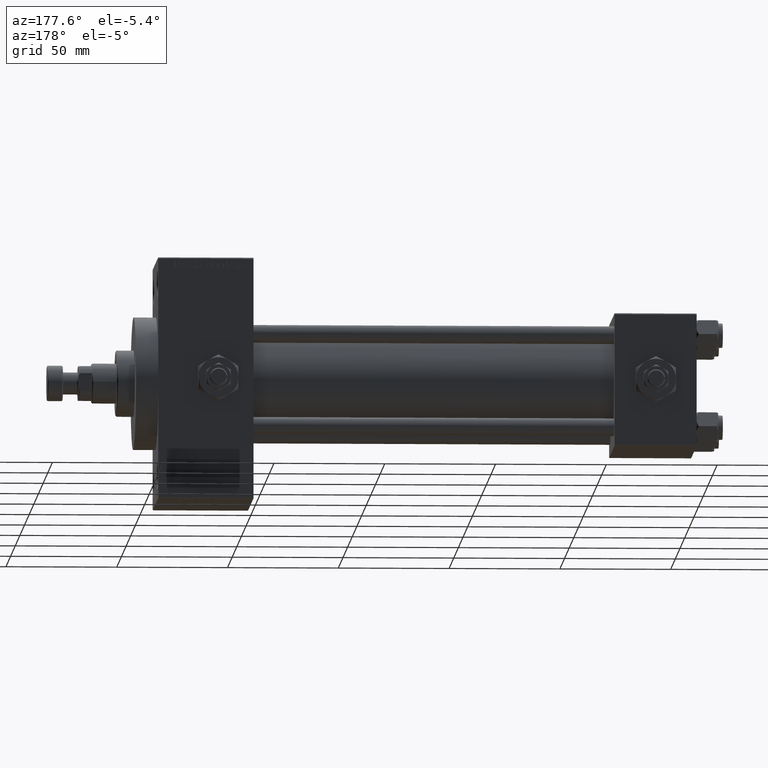
[diagram: clean part render]
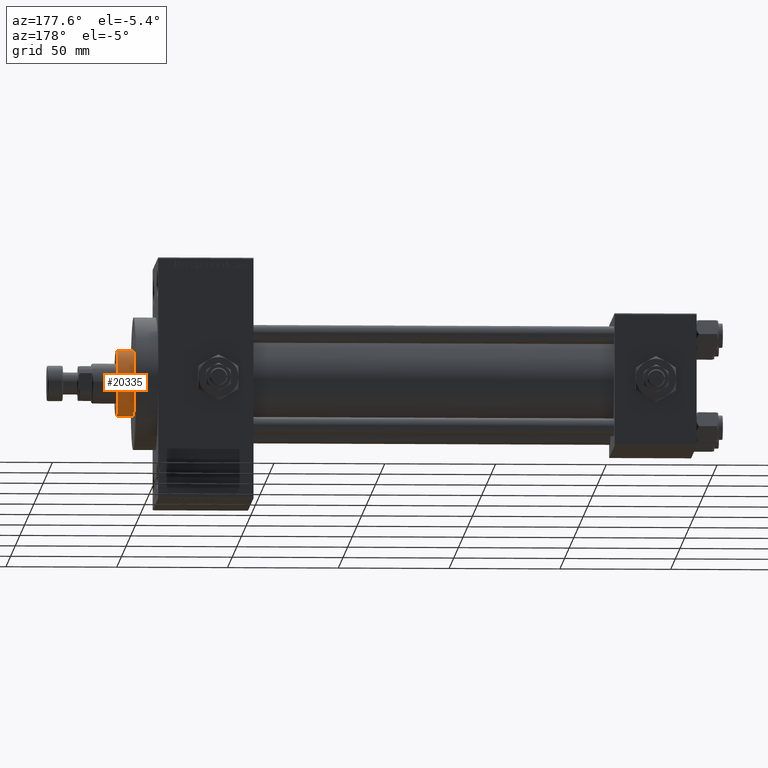
[diagram: same view with one face highlighted and labeled with its STEP entity id]
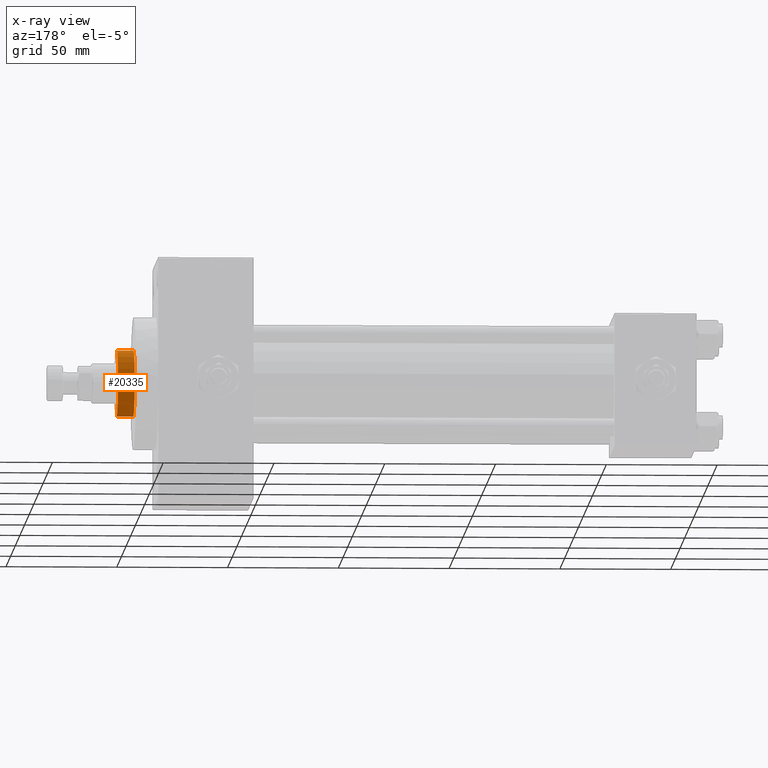
[diagram: x-ray of the same camera — body ghosted, the highlighted face saturated]
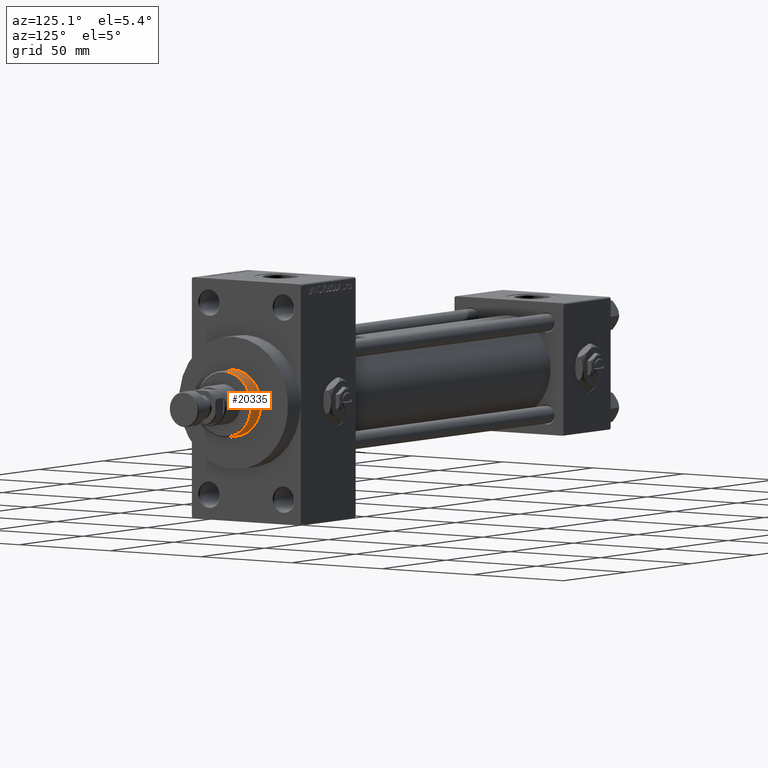
[diagram: same view with one face highlighted and labeled with its STEP entity id]
A machine part, auxiliary view. The second image highlights one B-rep face of the part: STEP entity #20335.
The next image is the same camera in x-ray: the body ghosted, the highlighted face saturated — about 0% of this face is hidden behind the body in this view.
A second angle (auxiliary view) of the same face is appended — the face is thin or edge-on in the first view.
In plain terms, the highlighted cylindrical surface (edge-blend (fillet) strip) has radius 15 mm, axis along (-1, 0, 0).
Its self-contained STEP definition (entity closure, byte-faithful):
#2546 = VERTEX_POINT ( 'NONE', #2569 ) ;
#2569 = CARTESIAN_POINT ( 'NONE',  ( -15.00000000000000000, 0.000000000000000000, 50.75999999999998380 ) ) ;
#3316 = DIRECTION ( 'NONE',  ( -0.000000000000000000, -0.000000000000000000, -1.000000000000000000 ) ) ;
#3533 = AXIS2_PLACEMENT_3D ( 'NONE', #8287, #46280, #27148 ) ;
#4258 = DIRECTION ( 'NONE',  ( 1.000000000000000000, 0.000000000000000000, 0.000000000000000000 ) ) ;
#6731 = CARTESIAN_POINT ( 'NONE',  ( 15.00000000000000000, 1.836970198721029589E-15, 51.25999999999999801 ) ) ;
#8287 = CARTESIAN_POINT ( 'NONE',  ( 0.000000000000000000, 0.000000000000000000, 50.75999999999998380 ) ) ;
#11213 = VECTOR ( 'NONE', #29859, 1000.000000000000000 ) ;
#11814 = CARTESIAN_POINT ( 'NONE',  ( 0.000000000000000000, 0.000000000000000000, 43.25999999999999801 ) ) ;
#13845 = VERTEX_POINT ( 'NONE', #42663 ) ;
#14184 = CARTESIAN_POINT ( 'NONE',  ( -15.00000000000000000, 0.000000000000000000, 43.25999999999999801 ) ) ;
#14746 = CARTESIAN_POINT ( 'NONE',  ( 15.00000000000000000, 1.836970198721029589E-15, 43.25999999999999801 ) ) ;
#15164 = DIRECTION ( 'NONE',  ( -1.000000000000000000, 0.000000000000000000, 0.000000000000000000 ) ) ;
#17559 = ORIENTED_EDGE ( 'NONE', *, *, #21419, .T. ) ;
#17857 = VERTEX_POINT ( 'NONE', #14746 ) ;
#18927 = CYLINDRICAL_SURFACE ( 'NONE', #26206, 15.00000000000000000 ) ;
#19011 = VECTOR ( 'NONE', #43347, 1000.000000000000000 ) ;
#19114 = DIRECTION ( 'NONE',  ( 0.000000000000000000, 0.000000000000000000, 1.000000000000000000 ) ) ;
#20335 = ADVANCED_FACE ( 'NONE', ( #46077 ), #18927, .T. ) ;
#21419 = EDGE_CURVE ( 'NONE', #2546, #49717, #39087, .T. ) ;
#22444 = CARTESIAN_POINT ( 'NONE',  ( 0.000000000000000000, 0.000000000000000000, 51.25999999999999801 ) ) ;
#22642 = ORIENTED_EDGE ( 'NONE', *, *, #40361, .T. ) ;
#24176 = ORIENTED_EDGE ( 'NONE', *, *, #48288, .T. ) ;
#26206 = AXIS2_PLACEMENT_3D ( 'NONE', #22444, #3316, #15164 ) ;
#26794 = ORIENTED_EDGE ( 'NONE', *, *, #32086, .F. ) ;
#27148 = DIRECTION ( 'NONE',  ( 1.000000000000000000, 0.000000000000000000, 0.000000000000000000 ) ) ;
#29859 = DIRECTION ( 'NONE',  ( -0.000000000000000000, -0.000000000000000000, -1.000000000000000000 ) ) ;
#31047 = CARTESIAN_POINT ( 'NONE',  ( -15.00000000000000000, 0.000000000000000000, 51.25999999999999801 ) ) ;
#32086 = EDGE_CURVE ( 'NONE', #13845, #17857, #37169, .T. ) ;
#32601 = CIRCLE ( 'NONE', #40655, 15.00000000000000000 ) ;
#33212 = CIRCLE ( 'NONE', #3533, 15.00000000000000000 ) ;
#37169 = LINE ( 'NONE', #6731, #11213 ) ;
#39087 = LINE ( 'NONE', #31047, #19011 ) ;
#40361 = EDGE_CURVE ( 'NONE', #13845, #2546, #33212, .T. ) ;
#40637 = EDGE_LOOP ( 'NONE', ( #26794, #22642, #17559, #24176 ) ) ;
#40655 = AXIS2_PLACEMENT_3D ( 'NONE', #11814, #19114, #4258 ) ;
#42663 = CARTESIAN_POINT ( 'NONE',  ( 15.00000000000000000, 1.836970198721029589E-15, 50.75999999999998380 ) ) ;
#43347 = DIRECTION ( 'NONE',  ( -0.000000000000000000, -0.000000000000000000, -1.000000000000000000 ) ) ;
#46077 = FACE_OUTER_BOUND ( 'NONE', #40637, .T. ) ;
#46280 = DIRECTION ( 'NONE',  ( 0.000000000000000000, 0.000000000000000000, -1.000000000000000000 ) ) ;
#48288 = EDGE_CURVE ( 'NONE', #49717, #17857, #32601, .T. ) ;
#49717 = VERTEX_POINT ( 'NONE', #14184 ) ;